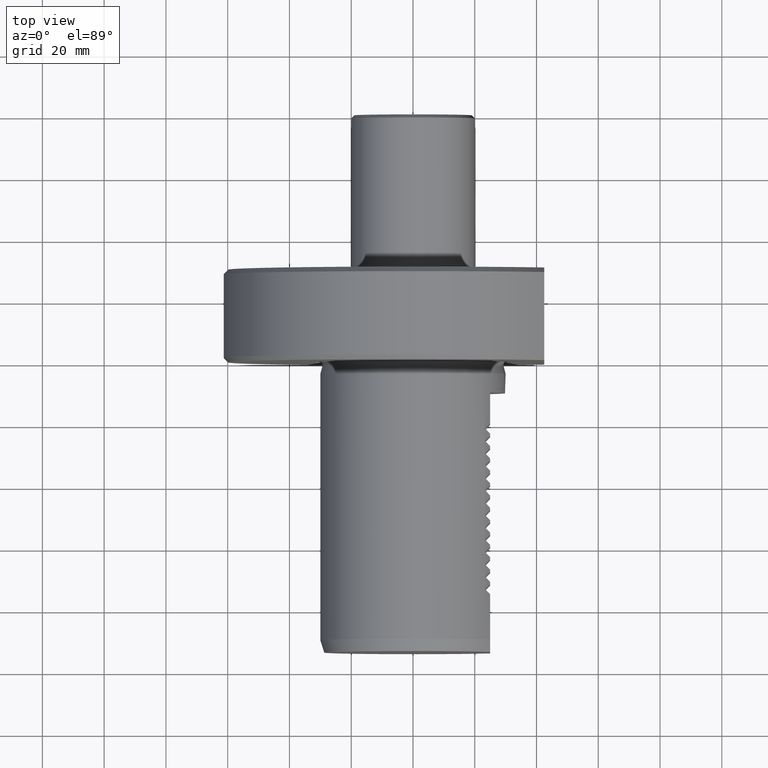
[diagram: clean part render]
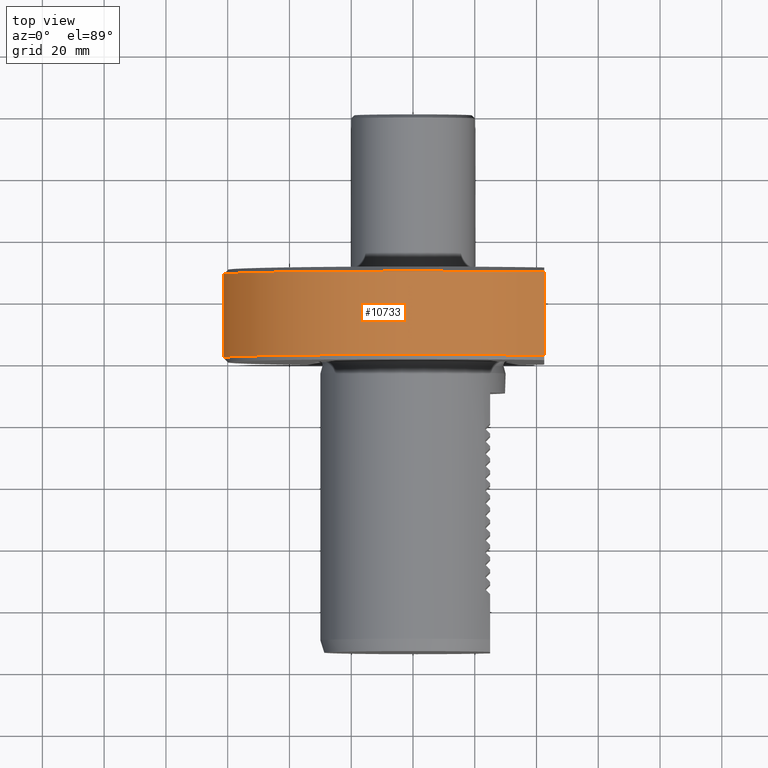
[diagram: same view with one face highlighted and labeled with its STEP entity id]
A machine part, top view. The second image highlights one B-rep face of the part: STEP entity #10733.
In plain terms, the highlighted cylindrical surface (partial cylindrical patch) has radius 61.5 mm, axis along (-0, 1, -0).
Its self-contained STEP definition (entity closure, byte-faithful):
#947 = EDGE_CURVE ( 'NONE', #11340, #7468, #7149, .T. ) ;
#971 = AXIS2_PLACEMENT_3D ( 'NONE', #9553, #5017, #7511 ) ;
#1157 = EDGE_CURVE ( 'NONE', #7736, #13944, #2760, .T. ) ;
#1584 = CARTESIAN_POINT ( 'NONE',  ( 42.50000000000000711, 5.505327496621600148E-15, 44.45222154178572538 ) ) ;
#1796 = ORIENTED_EDGE ( 'NONE', *, *, #1157, .F. ) ;
#2278 = AXIS2_PLACEMENT_3D ( 'NONE', #4507, #5498, #11899 ) ;
#2368 = DIRECTION ( 'NONE',  ( -1.295371175675670281E-16, 1.000000000000000000, -0.000000000000000000 ) ) ;
#2760 = CIRCLE ( 'NONE', #2278, 61.49999999999999289 ) ;
#3389 = DIRECTION ( 'NONE',  ( -1.000000000000000000, -1.295371175675670281E-16, 0.000000000000000000 ) ) ;
#3535 = CARTESIAN_POINT ( 'NONE',  ( 42.50000000000000711, 28.50000000000000711, 44.45222154178571117 ) ) ;
#4507 = CARTESIAN_POINT ( 'NONE',  ( -3.691807850675660867E-15, 28.50000000000000355, 0.000000000000000000 ) ) ;
#4673 = LINE ( 'NONE', #1584, #5480 ) ;
#4912 = CARTESIAN_POINT ( 'NONE',  ( 42.50000000000000711, 1.499999999999995781, 44.45222154178572538 ) ) ;
#5017 = DIRECTION ( 'NONE',  ( -1.295371175675670281E-16, 1.000000000000000000, -0.000000000000000000 ) ) ;
#5425 = ORIENTED_EDGE ( 'NONE', *, *, #11919, .F. ) ;
#5480 = VECTOR ( 'NONE', #7898, 1000.000000000000000 ) ;
#5498 = DIRECTION ( 'NONE',  ( -1.295371175675670281E-16, 1.000000000000000000, -0.000000000000000000 ) ) ;
#6192 = CARTESIAN_POINT ( 'NONE',  ( 42.49999999999999289, 5.505327496621598570E-15, -44.45222154178573959 ) ) ;
#6804 = CARTESIAN_POINT ( 'NONE',  ( 42.49999999999998579, 28.49999999999999645, -44.45222154178573959 ) ) ;
#7149 = CIRCLE ( 'NONE', #971, 61.50000000000000000 ) ;
#7219 = ORIENTED_EDGE ( 'NONE', *, *, #947, .T. ) ;
#7359 = VECTOR ( 'NONE', #9395, 1000.000000000000000 ) ;
#7435 = ORIENTED_EDGE ( 'NONE', *, *, #13152, .F. ) ;
#7468 = VERTEX_POINT ( 'NONE', #4912 ) ;
#7511 = DIRECTION ( 'NONE',  ( -1.000000000000000000, -1.304568467706135415E-16, 0.000000000000000000 ) ) ;
#7736 = VERTEX_POINT ( 'NONE', #6804 ) ;
#7898 = DIRECTION ( 'NONE',  ( 1.295371175675670281E-16, -1.000000000000000000, 0.000000000000000000 ) ) ;
#8335 = CARTESIAN_POINT ( 'NONE',  ( 42.49999999999999289, 1.500000000000006439, -44.45222154178573959 ) ) ;
#9255 = LINE ( 'NONE', #6192, #7359 ) ;
#9395 = DIRECTION ( 'NONE',  ( -1.295371175675670281E-16, 1.000000000000000000, -0.000000000000000000 ) ) ;
#9553 = CARTESIAN_POINT ( 'NONE',  ( -1.943056763513510352E-16, 1.500000000000003775, 0.000000000000000000 ) ) ;
#10733 = ADVANCED_FACE ( 'Defeature completata1_11', ( #11937 ), #10880, .T. ) ;
#10880 = CYLINDRICAL_SURFACE ( 'NONE', #12759, 61.50000000000000000 ) ;
#11340 = VERTEX_POINT ( 'NONE', #8335 ) ;
#11899 = DIRECTION ( 'NONE',  ( -1.000000000000000000, -1.128275431529630729E-16, 0.000000000000000000 ) ) ;
#11919 = EDGE_CURVE ( 'NONE', #13944, #7468, #4673, .T. ) ;
#11937 = FACE_OUTER_BOUND ( 'NONE', #12374, .T. ) ;
#12374 = EDGE_LOOP ( 'NONE', ( #5425, #1796, #7435, #7219 ) ) ;
#12759 = AXIS2_PLACEMENT_3D ( 'NONE', #14086, #2368, #3389 ) ;
#13152 = EDGE_CURVE ( 'NONE', #11340, #7736, #9255, .T. ) ;
#13944 = VERTEX_POINT ( 'NONE', #3535 ) ;
#14086 = CARTESIAN_POINT ( 'NONE',  ( 0.000000000000000000, 0.000000000000000000, 0.000000000000000000 ) ) ;